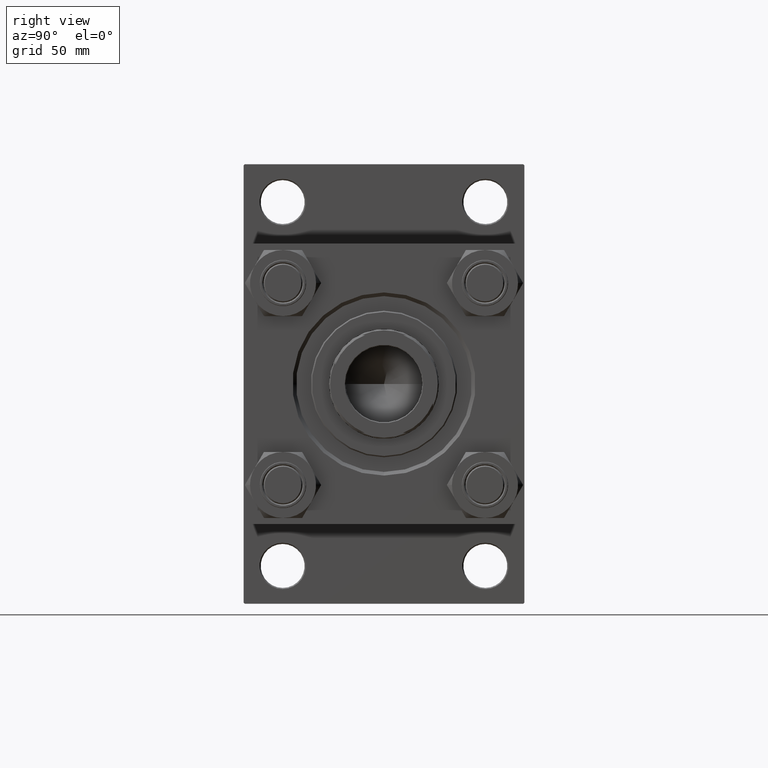
[diagram: clean part render]
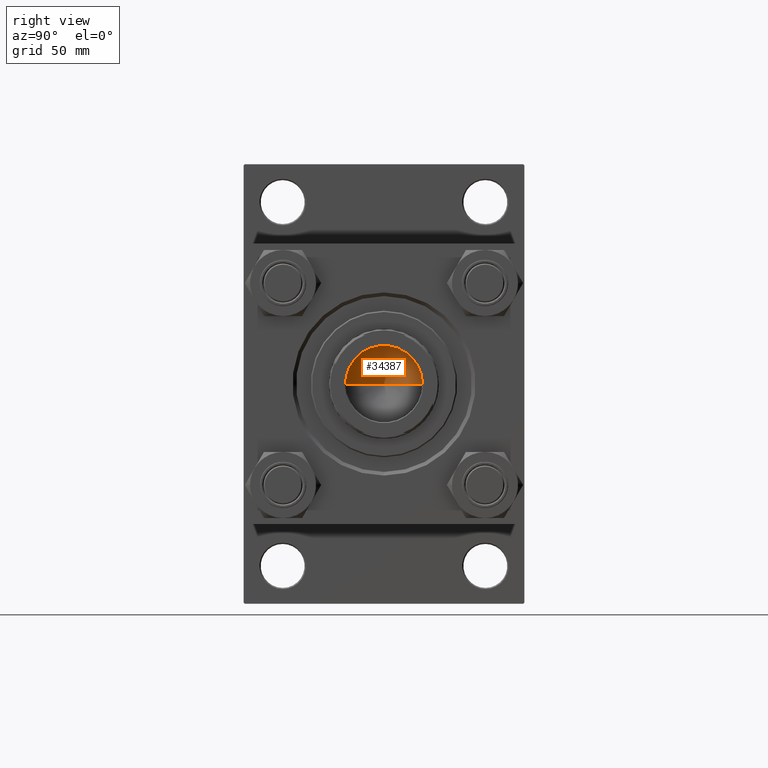
[diagram: same view with one face highlighted and labeled with its STEP entity id]
A machine part, right view. The second image highlights one B-rep face of the part: STEP entity #34387.
In plain terms, the highlighted conical surface has half-angle 59 deg.
Its self-contained STEP definition (entity closure, byte-faithful):
#4659 = CIRCLE ( 'NONE', #8746, 15.74999999999998934 ) ;
#6648 = LINE ( 'NONE', #9472, #7959 ) ;
#7959 = VECTOR ( 'NONE', #37773, 1000.000000000000000 ) ;
#8694 = EDGE_CURVE ( 'NONE', #9824, #10480, #4659, .T. ) ;
#8746 = AXIS2_PLACEMENT_3D ( 'NONE', #10960, #30096, #30344 ) ;
#9181 = FACE_OUTER_BOUND ( 'NONE', #23635, .T. ) ;
#9472 = CARTESIAN_POINT ( 'NONE',  ( -15.74999999999998934, 1.928818708657080161E-15, 111.0000000000000000 ) ) ;
#9691 = ORIENTED_EDGE ( 'NONE', *, *, #8694, .T. ) ;
#9696 = DIRECTION ( 'NONE',  ( -0.000000000000000000, -0.000000000000000000, 1.000000000000000000 ) ) ;
#9824 = VERTEX_POINT ( 'NONE', #36476 ) ;
#10072 = VERTEX_POINT ( 'NONE', #15766 ) ;
#10480 = VERTEX_POINT ( 'NONE', #12135 ) ;
#10960 = CARTESIAN_POINT ( 'NONE',  ( 0.000000000000000000, 0.000000000000000000, 111.0000000000000000 ) ) ;
#11051 = DIRECTION ( 'NONE',  ( 0.8571673007021115565, 0.000000000000000000, 0.5150380749100554878 ) ) ;
#11901 = CONICAL_SURFACE ( 'NONE', #46909, 15.74999999999998934, 1.029744258676652979 ) ;
#12135 = CARTESIAN_POINT ( 'NONE',  ( 15.74999999999998934, 0.000000000000000000, 111.0000000000000000 ) ) ;
#14264 = CARTESIAN_POINT ( 'NONE',  ( 0.000000000000000000, 0.000000000000000000, 111.0000000000000000 ) ) ;
#15766 = CARTESIAN_POINT ( 'NONE',  ( -1.584115414415908206E-14, 0.000000000000000000, 101.5364452503159072 ) ) ;
#22274 = LINE ( 'NONE', #45470, #50055 ) ;
#23635 = EDGE_LOOP ( 'NONE', ( #45791, #45574, #9691 ) ) ;
#30096 = DIRECTION ( 'NONE',  ( -0.000000000000000000, -0.000000000000000000, 1.000000000000000000 ) ) ;
#30344 = DIRECTION ( 'NONE',  ( 1.000000000000000000, 0.000000000000000000, 0.000000000000000000 ) ) ;
#32889 = DIRECTION ( 'NONE',  ( 1.000000000000000000, 0.000000000000000000, 0.000000000000000000 ) ) ;
#34387 = ADVANCED_FACE ( 'NONE', ( #9181 ), #11901, .F. ) ;
#36476 = CARTESIAN_POINT ( 'NONE',  ( -15.74999999999998934, 1.928818708657080161E-15, 111.0000000000000000 ) ) ;
#37773 = DIRECTION ( 'NONE',  ( -0.8571673007021115565, 1.049727191138617710E-16, 0.5150380749100554878 ) ) ;
#38813 = EDGE_CURVE ( 'NONE', #10072, #10480, #22274, .T. ) ;
#45470 = CARTESIAN_POINT ( 'NONE',  ( 15.74999999999998934, 0.000000000000000000, 111.0000000000000000 ) ) ;
#45574 = ORIENTED_EDGE ( 'NONE', *, *, #46571, .T. ) ;
#45791 = ORIENTED_EDGE ( 'NONE', *, *, #38813, .F. ) ;
#46571 = EDGE_CURVE ( 'NONE', #10072, #9824, #6648, .T. ) ;
#46909 = AXIS2_PLACEMENT_3D ( 'NONE', #14264, #9696, #32889 ) ;
#50055 = VECTOR ( 'NONE', #11051, 1000.000000000000000 ) ;